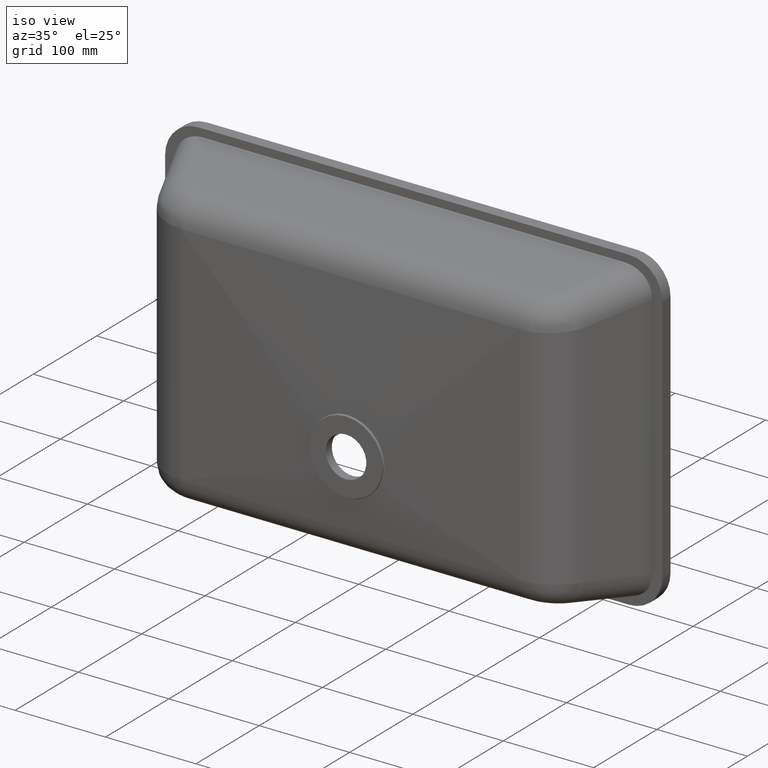
[diagram: clean part render]
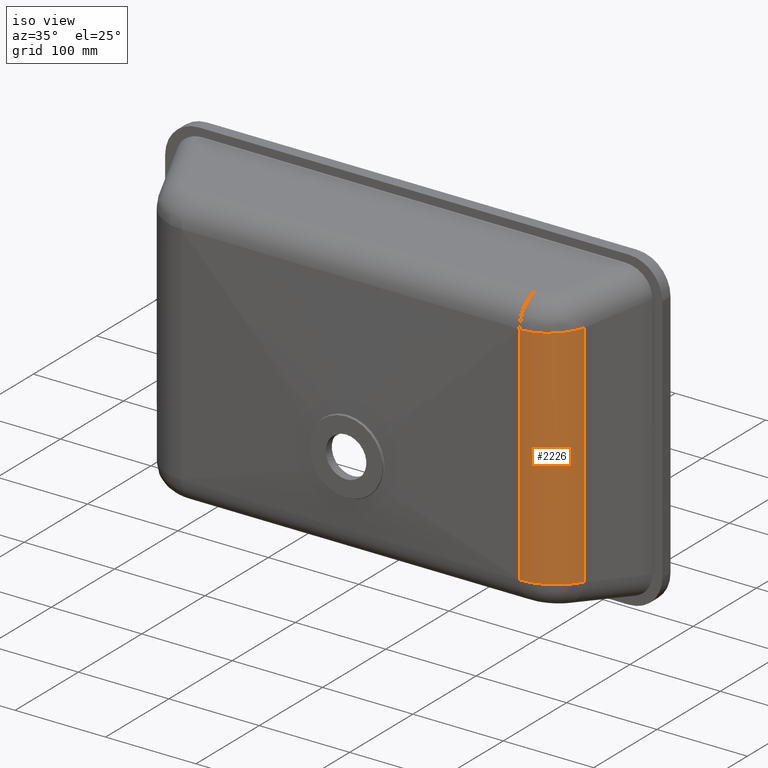
[diagram: same view with one face highlighted and labeled with its STEP entity id]
A machine part, iso view. The second image highlights one B-rep face of the part: STEP entity #2226.
In plain terms, the highlighted cylindrical surface (partial cylindrical patch) has radius 53 mm, axis along (-0, 0, 1).
Its self-contained STEP definition (entity closure, byte-faithful):
#280 = CARTESIAN_POINT ( 'NONE',  ( 187.0827688823269455, -112.9990229400567046, -83.84531600056676837 ) ) ;
#316 = VECTOR ( 'NONE', #6230, 1000.000000000000000 ) ;
#517 = CARTESIAN_POINT ( 'NONE',  ( 215.6111819220695907, -104.4604726127568739, -126.0036969204952300 ) ) ;
#578 = CARTESIAN_POINT ( 'NONE',  ( 210.7031991446485222, -107.3097759942687190, -125.8810080296871803 ) ) ;
#610 = CARTESIAN_POINT ( 'NONE',  ( 202.6609056684984864, -110.6243599936564976, -125.7179016377536698 ) ) ;
#646 = CARTESIAN_POINT ( 'NONE',  ( 195.3166817102180914, -112.3513857821020423, -125.6130773500566988 ) ) ;
#670 = CARTESIAN_POINT ( 'NONE',  ( 235.6075441200495106, -80.56702100308103809, 126.9683925397858388 ) ) ;
#677 = CARTESIAN_POINT ( 'NONE',  ( 216.1928113829364690, -104.0767605827761173, -126.0194638217283227 ) ) ;
#882 = EDGE_LOOP ( 'NONE', ( #2869, #3603, #2250, #902 ) ) ;
#902 = ORIENTED_EDGE ( 'NONE', *, *, #2688, .F. ) ;
#1000 = CARTESIAN_POINT ( 'NONE',  ( 216.0635973975750801, -104.1628215038733458, -126.0159395642389484 ) ) ;
#1059 = CARTESIAN_POINT ( 'NONE',  ( 190.9352266522208197, -112.8814169680326387, -125.5742782805183708 ) ) ;
#1086 = DIRECTION ( 'NONE',  ( -0.000000000000000000, 0.000000000000000000, 1.000000000000000000 ) ) ;
#1119 = EDGE_CURVE ( 'NONE', #2951, #2599, #4681, .T. ) ;
#1160 = CARTESIAN_POINT ( 'NONE',  ( 216.1389750607754081, -104.1126747131050223, -126.0179939493116734 ) ) ;
#1191 = CARTESIAN_POINT ( 'NONE',  ( 235.6075441200494822, -80.56702100308103809, -126.9683925397859241 ) ) ;
#1487 = CARTESIAN_POINT ( 'NONE',  ( 215.9128195067800675, -104.2626530846603430, -126.0118427464781092 ) ) ;
#1605 = DIRECTION ( 'NONE',  ( 1.000000000000000000, 0.000000000000000000, 0.000000000000000000 ) ) ;
#1612 = CARTESIAN_POINT ( 'NONE',  ( 213.4553435127405692, -105.7936048426521722, -125.9476160688880526 ) ) ;
#1646 = CARTESIAN_POINT ( 'NONE',  ( 216.2035782000384643, -104.0695692158540311, -126.0197580167615996 ) ) ;
#1714 = EDGE_CURVE ( 'NONE', #4232, #4604, #3834, .T. ) ;
#1735 = CARTESIAN_POINT ( 'NONE',  ( 187.0828860971448933, -112.9990222285338461, 83.02784700638588333 ) ) ;
#1786 = CARTESIAN_POINT ( 'NONE',  ( 235.6075441200494822, -80.56702100308103809, -126.9683925397859241 ) ) ;
#1952 = EDGE_CURVE ( 'NONE', #2599, #4604, #4859, .T. ) ;
#2056 = AXIS2_PLACEMENT_3D ( 'NONE', #3909, #1086, #1605 ) ;
#2220 = CARTESIAN_POINT ( 'NONE',  ( 216.2100278399144315, -104.0652593651653319, -126.0199343006226087 ) ) ;
#2226 = ADVANCED_FACE ( 'NONE', ( #3753 ), #4412, .T. ) ;
#2245 = CARTESIAN_POINT ( 'NONE',  ( 187.0879635804524526, -112.9989906440824683, 41.30955644747479738 ) ) ;
#2250 = ORIENTED_EDGE ( 'NONE', *, *, #1119, .F. ) ;
#2566 = CARTESIAN_POINT ( 'NONE',  ( 214.4901131877603575, -105.1691413498843843, -125.9741239888246014 ) ) ;
#2599 = VERTEX_POINT ( 'NONE', #670 ) ;
#2688 = EDGE_CURVE ( 'NONE', #4232, #2951, #6258, .T. ) ;
#2766 = CARTESIAN_POINT ( 'NONE',  ( 187.0756724618839826, -112.9990650759998232, 124.7461372855627246 ) ) ;
#2869 = ORIENTED_EDGE ( 'NONE', *, *, #1714, .T. ) ;
#2951 = VERTEX_POINT ( 'NONE', #5753 ) ;
#3019 = CARTESIAN_POINT ( 'NONE',  ( 197.6760303893313164, -111.9277983386706410, -125.6418020215037643 ) ) ;
#3125 = CARTESIAN_POINT ( 'NONE',  ( 235.6075441200495106, -80.56702100308103809, 126.9683925397858388 ) ) ;
#3178 = CARTESIAN_POINT ( 'NONE',  ( 220.4959163102601849, -101.2003780660754018, -126.1371028388059727 ) ) ;
#3387 = CARTESIAN_POINT ( 'NONE',  ( 187.0718882261867861, -112.9934985688064017, -125.6008493641123351 ) ) ;
#3494 = CARTESIAN_POINT ( 'NONE',  ( 187.0718882261867861, -112.9934985688064017, -125.6008493641123351 ) ) ;
#3563 = CARTESIAN_POINT ( 'NONE',  ( 215.0076466636159012, -104.8487724045072156, -125.9875965066837864 ) ) ;
#3597 = CARTESIAN_POINT ( 'NONE',  ( 230.9139232749134294, -89.76629531120380534, -126.5907732560108911 ) ) ;
#3603 = ORIENTED_EDGE ( 'NONE', *, *, #1952, .F. ) ;
#3753 = FACE_OUTER_BOUND ( 'NONE', #882, .T. ) ;
#3759 = CARTESIAN_POINT ( 'NONE',  ( 208.9416450399383223, -112.8691858289429604, 124.7550366579741876 ) ) ;
#3834 = B_SPLINE_CURVE_WITH_KNOTS ( 'NONE', 3,
 ( #3494, #5439, #1059, #646, #3019, #610, #4959, #5506, #578, #5384, #1612, #2566, #3563, #517, #1487, #1000, #1160, #4574, #677, #1646, #2220, #3178, #4169, #3597, #5636, #1191 ),
 .UNSPECIFIED., .F., .F.,
 ( 4, 2, 2, 2, 2, 2, 1, 1, 1, 1, 1, 1, 2, 2, 2, 4 ),
 ( 0.000000000000000000, 0.1250000000000936751, 0.2500000000001873501, 0.3750000000002809974, 0.4375000000003277378, 0.4687500000003511080, 0.4843750000003628209, 0.4921875000003682610, 0.4960937500003709255, 0.4980468750003723133, 0.4990234375003727019, 0.4995117187503724243, 0.4997558593753724798, 0.5000000000003724798, 0.7500000000001861844, 1.000000000000000000 ),
 .UNSPECIFIED. ) ;
#3909 = CARTESIAN_POINT ( 'NONE',  ( 186.7608692377320381, -60.00000000000000000, -149.9999999999999716 ) ) ;
#4169 = CARTESIAN_POINT ( 'NONE',  ( 224.3570004317415396, -97.71015031270592033, -126.2746586132127362 ) ) ;
#4232 = VERTEX_POINT ( 'NONE', #3387 ) ;
#4321 = CARTESIAN_POINT ( 'NONE',  ( 235.6075441200494822, -80.56702100308103809, -149.9999999999999716 ) ) ;
#4412 = CYLINDRICAL_SURFACE ( 'NONE', #2056, 52.99999999999999289 ) ;
#4574 = CARTESIAN_POINT ( 'NONE',  ( 216.1766609392246892, -104.0875434996677029, -126.0190226358960928 ) ) ;
#4604 = VERTEX_POINT ( 'NONE', #1786 ) ;
#4629 = CARTESIAN_POINT ( 'NONE',  ( 187.0718882261867861, -112.9934985688064017, -125.6008493641123351 ) ) ;
#4681 =( BOUNDED_CURVE ( )  B_SPLINE_CURVE ( 3, ( #2766, #3759, #5705, #3125 ),
 .UNSPECIFIED., .F., .F. ) 
 B_SPLINE_CURVE_WITH_KNOTS ( ( 4, 4 ),
 ( 3.147532371990092059, 4.313866534718268753 ),
 .UNSPECIFIED. ) 
 CURVE ( )  GEOMETRIC_REPRESENTATION_ITEM ( )  RATIONAL_B_SPLINE_CURVE ( ( 1.000000000000000000, 0.8898152142624122796, 0.8898152142624122796, 1.000000000000000000 ) ) 
 REPRESENTATION_ITEM ( '' )  );
#4859 = LINE ( 'NONE', #4321, #316 ) ;
#4959 = CARTESIAN_POINT ( 'NONE',  ( 205.2868387047768977, -109.7440048066994081, -125.7652765825563961 ) ) ;
#5384 = CARTESIAN_POINT ( 'NONE',  ( 212.7659013005646500, -106.1882108758385215, -125.9305269433060914 ) ) ;
#5439 = CARTESIAN_POINT ( 'NONE',  ( 188.9126904758862224, -112.9881575030991314, -125.5642038824270657 ) ) ;
#5506 = CARTESIAN_POINT ( 'NONE',  ( 209.3356848567553072, -107.9744420446221511, -125.8503267047773875 ) ) ;
#5628 = CARTESIAN_POINT ( 'NONE',  ( 187.0756724618839826, -112.9990650759998232, 124.7461372855627246 ) ) ;
#5636 = CARTESIAN_POINT ( 'NONE',  ( 233.6089759378030237, -85.31362043591644806, -126.7693321244022542 ) ) ;
#5705 = CARTESIAN_POINT ( 'NONE',  ( 227.1221507150762307, -100.7198303398925958, 125.5875148394483602 ) ) ;
#5753 = CARTESIAN_POINT ( 'NONE',  ( 187.0756724618839826, -112.9990650759998232, 124.7461372855627246 ) ) ;
#6101 = CARTESIAN_POINT ( 'NONE',  ( 187.0879154186184508, -112.9989909413014288, -42.12702545354417083 ) ) ;
#6230 = DIRECTION ( 'NONE',  ( -0.000000000000000000, -0.000000000000000000, -1.000000000000000000 ) ) ;
#6258 = B_SPLINE_CURVE_WITH_KNOTS ( 'NONE', 3,
 ( #4629, #280, #6101, #2245, #1735, #5628 ),
 .UNSPECIFIED., .F., .F.,
 ( 4, 2, 4 ),
 ( 0.5104363936482005926, 0.6355912663524927453, 0.7607461390567850090 ),
 .UNSPECIFIED. ) ;